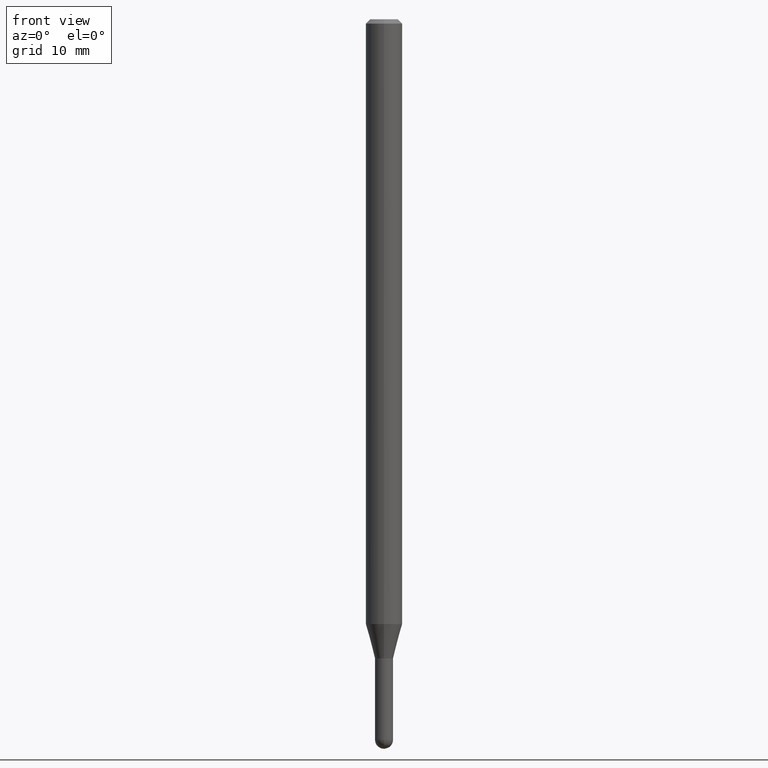
[diagram: clean part render]
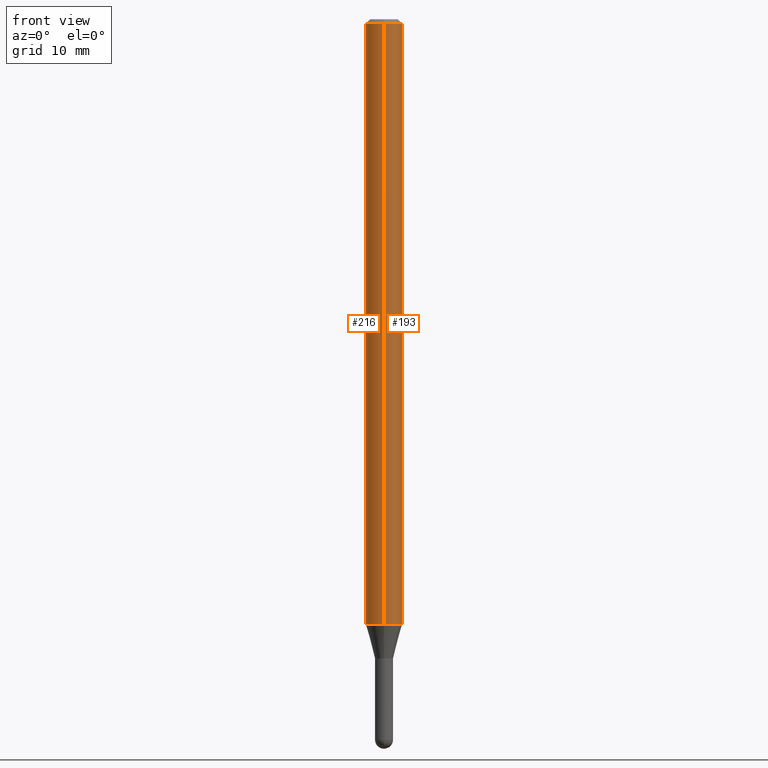
[diagram: same view with one multi-face feature highlighted, each face labeled with its STEP entity id]
A machine part, front view. The highlighted faces form ONE feature: a constant-radius fillet chain: 2 tangent blend faces with common blend radius 1.5875 mm. The faces share edges in the B-rep.
Their STEP definitions:
[1] entity #193 (Cylinder):
#5 = CARTESIAN_POINT ( 'NONE',  ( 4.440892098501135963E-16, 0.06249999999999995143, -0.01500000000000022669 ) ) ;
#8 = DIRECTION ( 'NONE',  ( -2.445487669170412374E-29, 3.491454325974616325E-15, 1.000000000000000000 ) ) ;
#32 = CARTESIAN_POINT ( 'NONE',  ( 4.440892098500625669E-16, 0.06250000000000000000, -2.182158953734134956E-16 ) ) ;
#43 = ORIENTED_EDGE ( 'NONE', *, *, #125, .F. ) ;
#63 = ORIENTED_EDGE ( 'NONE', *, *, #170, .T. ) ;
#72 = CYLINDRICAL_SURFACE ( 'NONE', #274, 0.06250000000000000000 ) ;
#85 = DIRECTION ( 'NONE',  ( -2.445487669170412374E-29, 3.491454325974616719E-15, 1.000000000000000000 ) ) ;
#86 = VERTEX_POINT ( 'NONE', #108 ) ;
#96 = DIRECTION ( 'NONE',  ( -6.982962677686265922E-15, -1.000000000000000000, 3.491454325974615930E-15 ) ) ;
#98 = CARTESIAN_POINT ( 'NONE',  ( 4.440892098501130047E-16, 0.06249999999999273498, -2.072440399561584101 ) ) ;
#100 = LINE ( 'NONE', #137, #311 ) ;
#108 = CARTESIAN_POINT ( 'NONE',  ( -4.364351673553912750E-16, -0.06250000000000005551, -0.01499999999999979128 ) ) ;
#113 = EDGE_CURVE ( 'NONE', #86, #164, #328, .T. ) ;
#125 = EDGE_CURVE ( 'NONE', #312, #86, #100, .T. ) ;
#131 = EDGE_CURVE ( 'NONE', #312, #286, #443, .T. ) ;
#137 = CARTESIAN_POINT ( 'NONE',  ( -4.364351673553916201E-16, -0.06250000000000000000, 2.182158953734134956E-16 ) ) ;
#150 = FACE_OUTER_BOUND ( 'NONE', #495, .T. ) ;
#164 = VERTEX_POINT ( 'NONE', #5 ) ;
#170 = EDGE_CURVE ( 'NONE', #286, #164, #391, .T. ) ;
#172 = AXIS2_PLACEMENT_3D ( 'NONE', #211, #271, #450 ) ;
#184 = DIRECTION ( 'NONE',  ( -6.982962677686265922E-15, -1.000000000000000000, 4.370956789862821150E-15 ) ) ;
#193 = ADVANCED_FACE ( 'NONE', ( #150 ), #72, .T. ) ;
#211 = CARTESIAN_POINT ( 'NONE',  ( 3.668231503755621049E-31, -5.237181488961927963E-17, -0.01500000000000000812 ) ) ;
#225 = CARTESIAN_POINT ( 'NONE',  ( 5.068127442218456188E-29, -7.235830998373855242E-15, -2.072440399561584101 ) ) ;
#241 = CARTESIAN_POINT ( 'NONE',  ( -4.364351673553410837E-16, -0.06250000000000725808, -2.072440399561583657 ) ) ;
#265 = DIRECTION ( 'NONE',  ( -2.445487669170412374E-29, 3.491454325974616719E-15, 1.000000000000000000 ) ) ;
#271 = DIRECTION ( 'NONE',  ( -2.445487669170412374E-29, 3.491454325974616325E-15, 1.000000000000000000 ) ) ;
#274 = AXIS2_PLACEMENT_3D ( 'NONE', #373, #8, #96 ) ;
#286 = VERTEX_POINT ( 'NONE', #98 ) ;
#311 = VECTOR ( 'NONE', #265, 39.37007874015748143 ) ;
#312 = VERTEX_POINT ( 'NONE', #241 ) ;
#328 = CIRCLE ( 'NONE', #172, 0.06250000000000000000 ) ;
#333 = ORIENTED_EDGE ( 'NONE', *, *, #113, .F. ) ;
#367 = VECTOR ( 'NONE', #85, 39.37007874015748143 ) ;
#373 = CARTESIAN_POINT ( 'NONE',  ( 0.000000000000000000, 0.000000000000000000, 0.000000000000000000 ) ) ;
#382 = DIRECTION ( 'NONE',  ( -2.445487669170412374E-29, 3.491454325974616325E-15, 1.000000000000000000 ) ) ;
#391 = LINE ( 'NONE', #32, #367 ) ;
#422 = AXIS2_PLACEMENT_3D ( 'NONE', #225, #382, #184 ) ;
#443 = CIRCLE ( 'NONE', #422, 0.06250000000000000000 ) ;
#450 = DIRECTION ( 'NONE',  ( -6.982962677686265922E-15, -1.000000000000000000, 3.483106191921935554E-15 ) ) ;
#495 = EDGE_LOOP ( 'NONE', ( #506, #63, #333, #43 ) ) ;
#506 = ORIENTED_EDGE ( 'NONE', *, *, #131, .T. ) ;
[2] entity #216 (Cylinder):
#5 = CARTESIAN_POINT ( 'NONE',  ( 4.440892098501135963E-16, 0.06249999999999995143, -0.01500000000000022669 ) ) ;
#20 = FACE_OUTER_BOUND ( 'NONE', #233, .T. ) ;
#32 = CARTESIAN_POINT ( 'NONE',  ( 4.440892098500625669E-16, 0.06250000000000000000, -2.182158953734134956E-16 ) ) ;
#45 = ORIENTED_EDGE ( 'NONE', *, *, #420, .F. ) ;
#53 = DIRECTION ( 'NONE',  ( -2.445487669170412374E-29, 3.491454325974616325E-15, 1.000000000000000000 ) ) ;
#55 = CARTESIAN_POINT ( 'NONE',  ( 3.668231503755621049E-31, -5.237181488961927963E-17, -0.01500000000000000812 ) ) ;
#85 = DIRECTION ( 'NONE',  ( -2.445487669170412374E-29, 3.491454325974616719E-15, 1.000000000000000000 ) ) ;
#86 = VERTEX_POINT ( 'NONE', #108 ) ;
#94 = CARTESIAN_POINT ( 'NONE',  ( 5.068127442218456188E-29, -7.235830998373855242E-15, -2.072440399561584101 ) ) ;
#98 = CARTESIAN_POINT ( 'NONE',  ( 4.440892098501130047E-16, 0.06249999999999273498, -2.072440399561584101 ) ) ;
#100 = LINE ( 'NONE', #137, #311 ) ;
#106 = CIRCLE ( 'NONE', #337, 0.06250000000000000000 ) ;
#108 = CARTESIAN_POINT ( 'NONE',  ( -4.364351673553912750E-16, -0.06250000000000005551, -0.01499999999999979128 ) ) ;
#125 = EDGE_CURVE ( 'NONE', #312, #86, #100, .T. ) ;
#132 = AXIS2_PLACEMENT_3D ( 'NONE', #55, #217, #370 ) ;
#137 = CARTESIAN_POINT ( 'NONE',  ( -4.364351673553916201E-16, -0.06250000000000000000, 2.182158953734134956E-16 ) ) ;
#142 = DIRECTION ( 'NONE',  ( -2.445487669170412374E-29, 3.491454325974616325E-15, 1.000000000000000000 ) ) ;
#157 = ORIENTED_EDGE ( 'NONE', *, *, #125, .T. ) ;
#164 = VERTEX_POINT ( 'NONE', #5 ) ;
#170 = EDGE_CURVE ( 'NONE', #286, #164, #391, .T. ) ;
#216 = ADVANCED_FACE ( 'NONE', ( #20 ), #305, .T. ) ;
#217 = DIRECTION ( 'NONE',  ( -2.445487669170412374E-29, 3.491454325974616325E-15, 1.000000000000000000 ) ) ;
#218 = DIRECTION ( 'NONE',  ( -6.982962677686265922E-15, -1.000000000000000000, 4.370956789862821150E-15 ) ) ;
#227 = AXIS2_PLACEMENT_3D ( 'NONE', #309, #142, #452 ) ;
#233 = EDGE_LOOP ( 'NONE', ( #290, #266, #157, #45 ) ) ;
#241 = CARTESIAN_POINT ( 'NONE',  ( -4.364351673553410837E-16, -0.06250000000000725808, -2.072440399561583657 ) ) ;
#245 = CIRCLE ( 'NONE', #132, 0.06250000000000000000 ) ;
#265 = DIRECTION ( 'NONE',  ( -2.445487669170412374E-29, 3.491454325974616719E-15, 1.000000000000000000 ) ) ;
#266 = ORIENTED_EDGE ( 'NONE', *, *, #454, .T. ) ;
#286 = VERTEX_POINT ( 'NONE', #98 ) ;
#290 = ORIENTED_EDGE ( 'NONE', *, *, #170, .F. ) ;
#305 = CYLINDRICAL_SURFACE ( 'NONE', #227, 0.06250000000000000000 ) ;
#309 = CARTESIAN_POINT ( 'NONE',  ( 0.000000000000000000, 0.000000000000000000, 0.000000000000000000 ) ) ;
#311 = VECTOR ( 'NONE', #265, 39.37007874015748143 ) ;
#312 = VERTEX_POINT ( 'NONE', #241 ) ;
#337 = AXIS2_PLACEMENT_3D ( 'NONE', #94, #53, #218 ) ;
#367 = VECTOR ( 'NONE', #85, 39.37007874015748143 ) ;
#370 = DIRECTION ( 'NONE',  ( -6.982962677686265922E-15, -1.000000000000000000, 3.483106191921935554E-15 ) ) ;
#391 = LINE ( 'NONE', #32, #367 ) ;
#420 = EDGE_CURVE ( 'NONE', #164, #86, #245, .T. ) ;
#452 = DIRECTION ( 'NONE',  ( -6.982962677686265922E-15, -1.000000000000000000, 3.491454325974615930E-15 ) ) ;
#454 = EDGE_CURVE ( 'NONE', #286, #312, #106, .T. ) ;